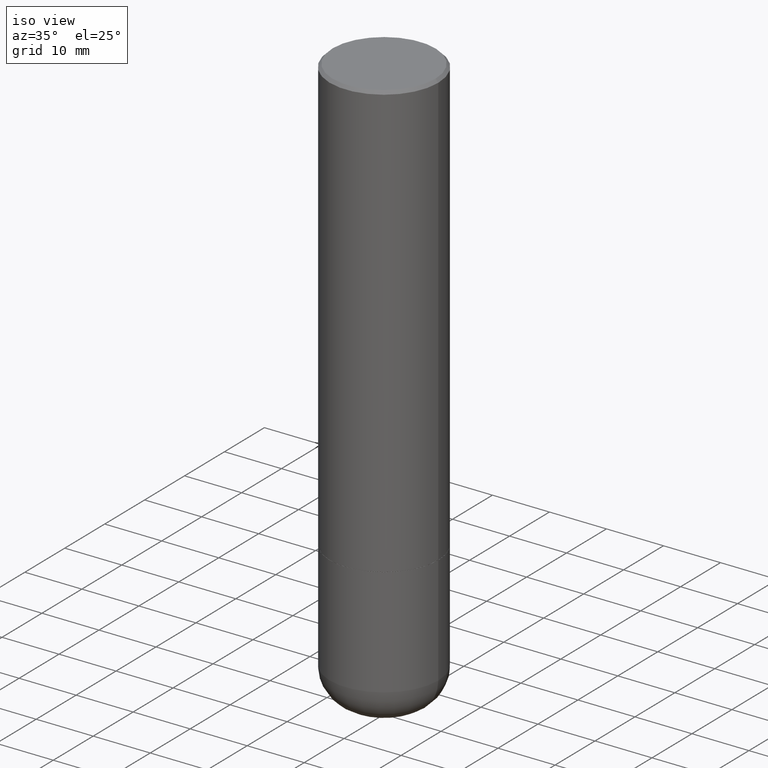
[diagram: clean part render]
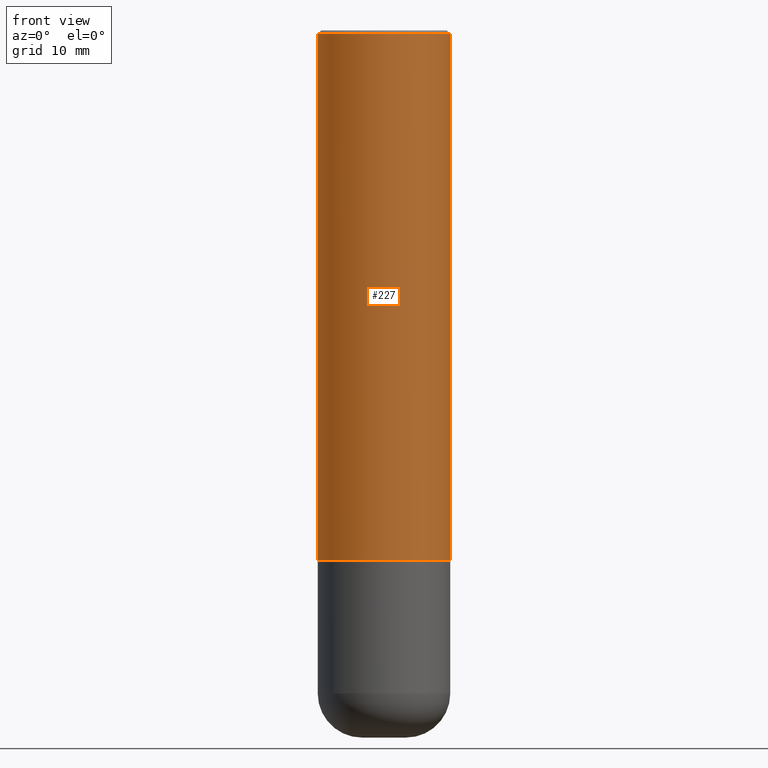
[diagram: tour spotlight — one face highlighted and labeled with its STEP entity id]
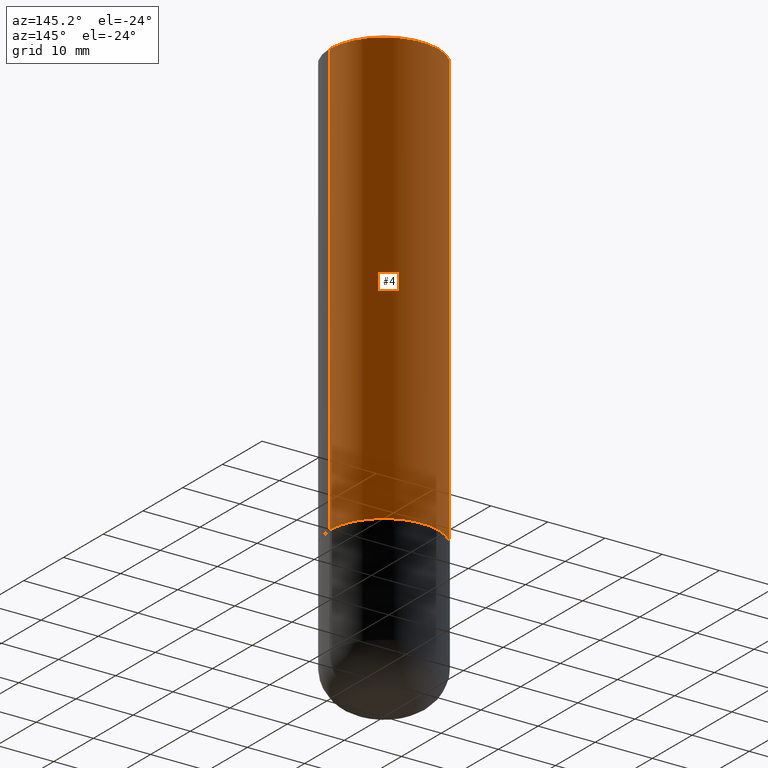
[diagram: tour spotlight — one face highlighted and labeled with its STEP entity id]
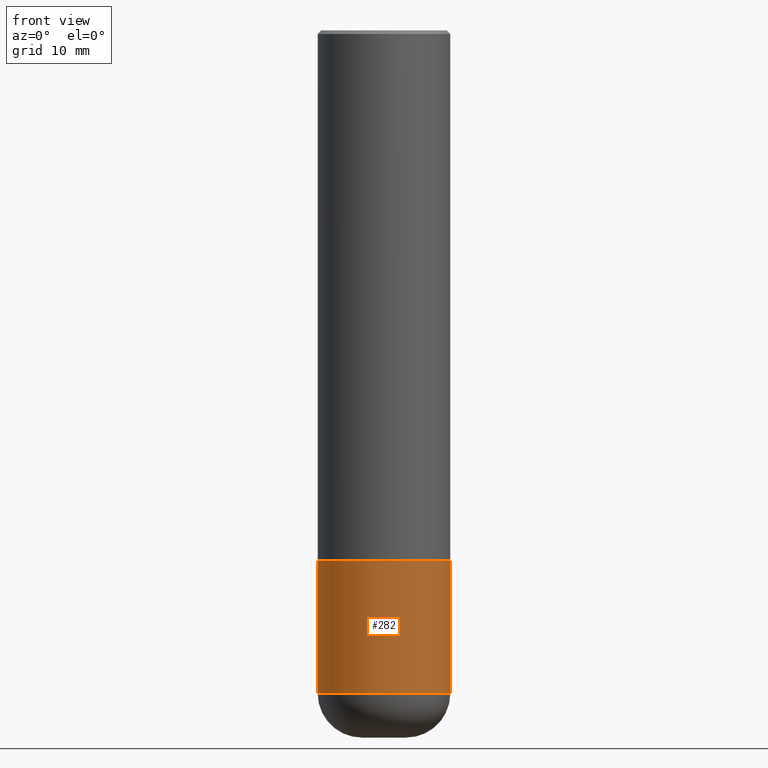
[diagram: tour spotlight — one face highlighted and labeled with its STEP entity id]
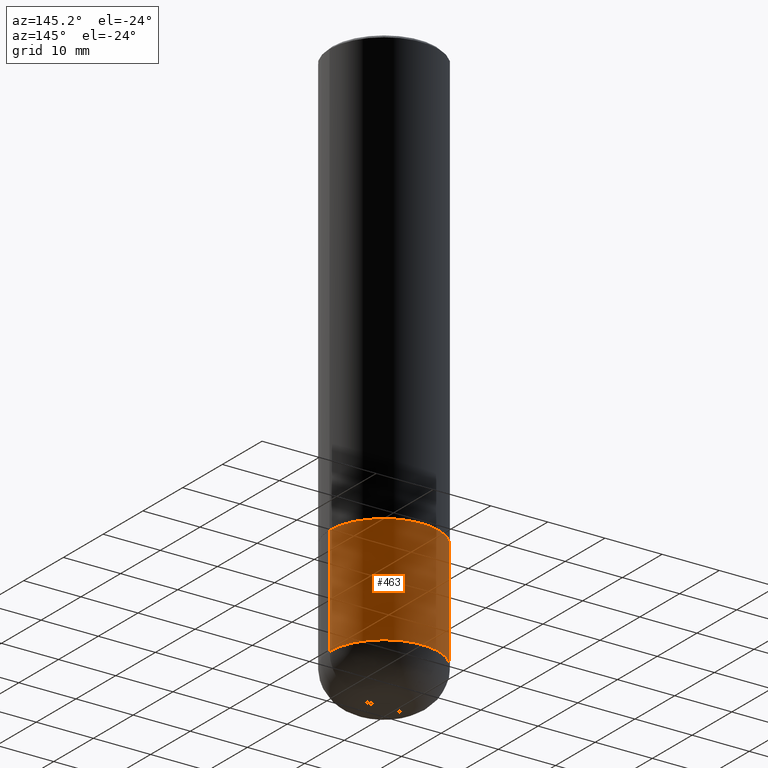
[diagram: tour spotlight — one face highlighted and labeled with its STEP entity id]
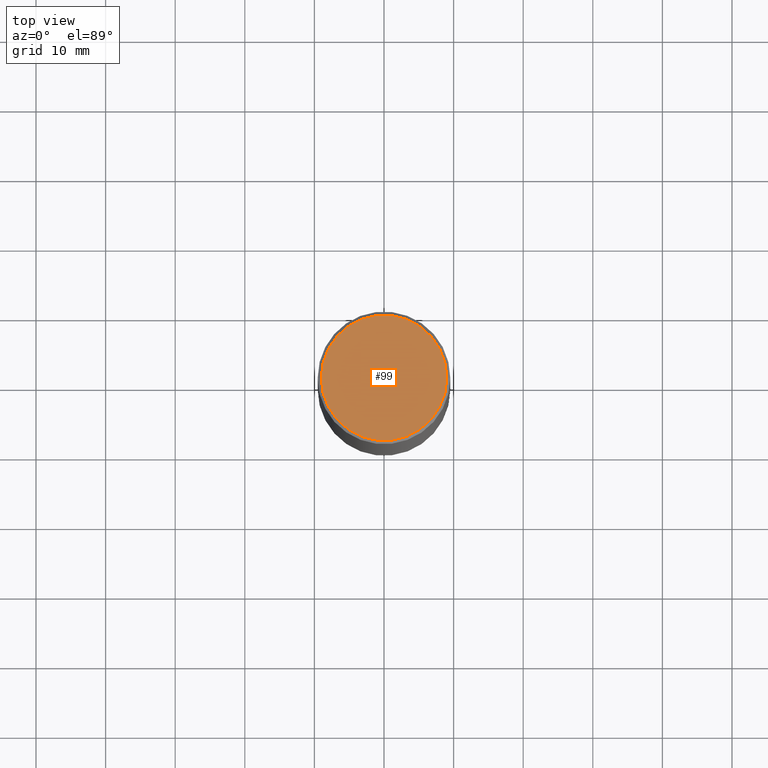
[diagram: tour spotlight — one face highlighted and labeled with its STEP entity id]
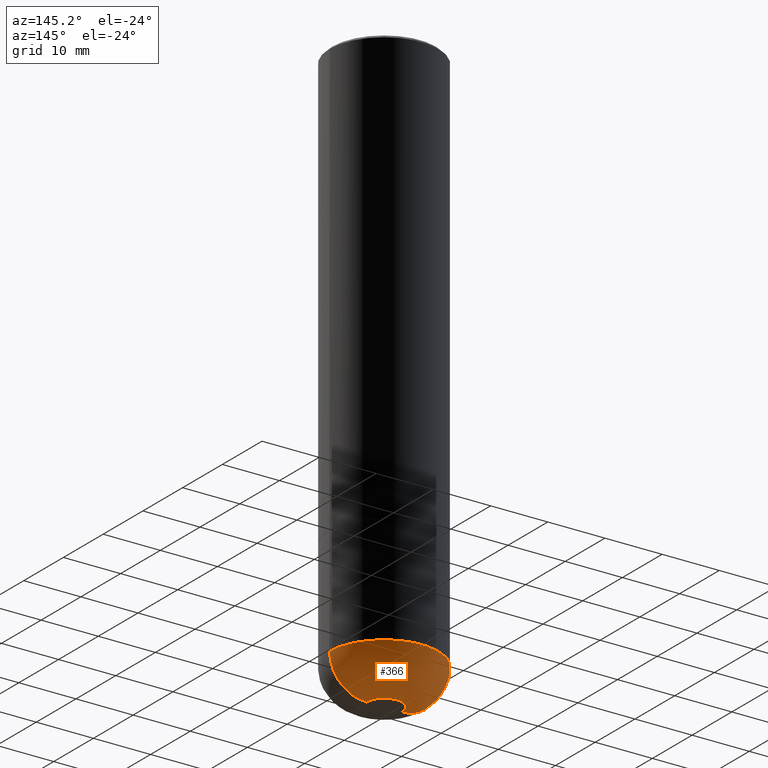
[diagram: tour spotlight — one face highlighted and labeled with its STEP entity id]
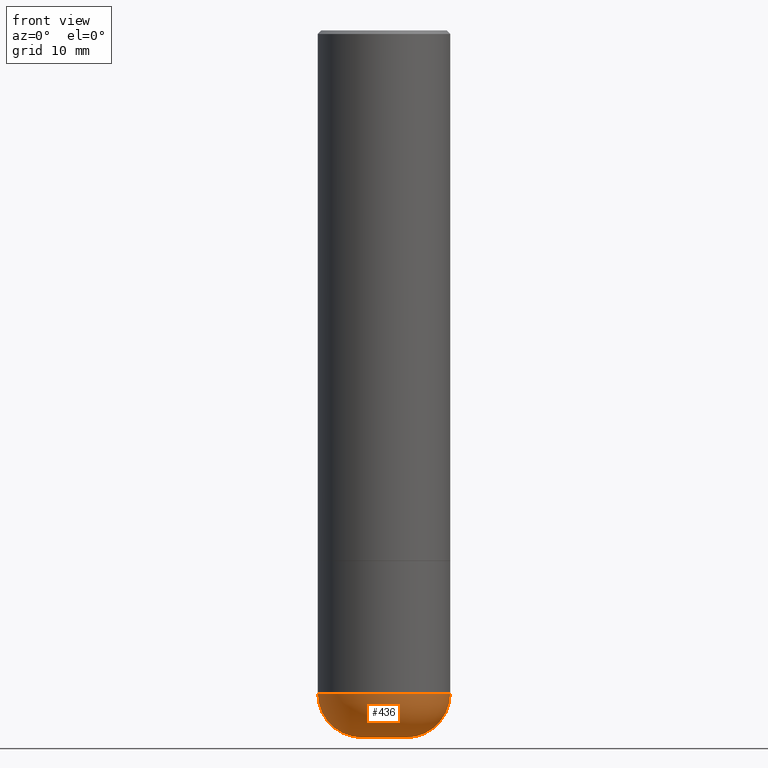
[diagram: tour spotlight — one face highlighted and labeled with its STEP entity id]
A machine part: a face-by-face anatomy tour. The part has 17 B-rep faces; the first image is the clean iso view, then the 7 largest visible faces are spotlighted one at a time (largest first), each with its STEP entity span.

Face 1 — front view, entity #227. In plain terms, the highlighted cylindrical surface (partial cylindrical patch) has radius 9.525 mm, axis along (-0, 0, 1).
Definition (entity closure, byte-faithful):
#1 = DIRECTION ( 'NONE',  ( -2.445468806185136597E-29, 3.491481338843145583E-15, 1.000000000000000000 ) ) ;
#5 = VECTOR ( 'NONE', #356, 39.37007874015748143 ) ;
#32 = EDGE_CURVE ( 'NONE', #407, #88, #280, .T. ) ;
#44 = CARTESIAN_POINT ( 'NONE',  ( 0.3749999999999992784, -2.618611004132345283E-15, 1.828566290923472279E-29 ) ) ;
#45 = CARTESIAN_POINT ( 'NONE',  ( -0.3749999999999992784, 2.664535259100370569E-15, -1.844600658845586235E-29 ) ) ;
#73 = ORIENTED_EDGE ( 'NONE', *, *, #442, .T. ) ;
#80 = VERTEX_POINT ( 'NONE', #238 ) ;
#88 = VERTEX_POINT ( 'NONE', #205 ) ;
#89 = LINE ( 'NONE', #44, #5 ) ;
#94 = EDGE_CURVE ( 'NONE', #271, #407, #472, .T. ) ;
#111 = DIRECTION ( 'NONE',  ( -2.445468806185136597E-29, 3.491481338843145583E-15, 1.000000000000000000 ) ) ;
#115 = EDGE_LOOP ( 'NONE', ( #327, #223, #73, #385 ) ) ;
#118 = CARTESIAN_POINT ( 'NONE',  ( 0.000000000000000000, 0.000000000000000000, 0.000000000000000000 ) ) ;
#130 = EDGE_CURVE ( 'NONE', #271, #80, #409, .T. ) ;
#172 = CARTESIAN_POINT ( 'NONE',  ( 7.333960949749226429E-29, -1.047095253519059492E-14, -2.999000000000000554 ) ) ;
#191 = AXIS2_PLACEMENT_3D ( 'NONE', #172, #320, #477 ) ;
#205 = CARTESIAN_POINT ( 'NONE',  ( 0.3749999999999991673, -2.642516375941182112E-15, -0.02000000000000022246 ) ) ;
#217 = CARTESIAN_POINT ( 'NONE',  ( -0.3749999999999993894, -2.605855821883354597E-15, -2.999000000000000554 ) ) ;
#223 = ORIENTED_EDGE ( 'NONE', *, *, #130, .T. ) ;
#227 = ADVANCED_FACE ( 'NONE', ( #374 ), #492, .T. ) ;
#238 = CARTESIAN_POINT ( 'NONE',  ( 0.3749999999999995004, -1.308956353932294179E-14, -2.999000000000000554 ) ) ;
#260 = AXIS2_PLACEMENT_3D ( 'NONE', #118, #111, #262 ) ;
#262 = DIRECTION ( 'NONE',  ( 1.000000000000000000, -6.982962677686267499E-15, 4.876176775795935232E-29 ) ) ;
#271 = VERTEX_POINT ( 'NONE', #217 ) ;
#280 = CIRCLE ( 'NONE', #339, 0.3749999999999991673 ) ;
#306 = DIRECTION ( 'NONE',  ( 1.000000000000000000, -6.982962677686266711E-15, 0.000000000000000000 ) ) ;
#307 = VECTOR ( 'NONE', #462, 39.37007874015748143 ) ;
#320 = DIRECTION ( 'NONE',  ( -2.445468806185136597E-29, 3.491481338843145583E-15, 1.000000000000000000 ) ) ;
#327 = ORIENTED_EDGE ( 'NONE', *, *, #94, .F. ) ;
#339 = AXIS2_PLACEMENT_3D ( 'NONE', #375, #1, #306 ) ;
#356 = DIRECTION ( 'NONE',  ( -2.445468806185136877E-29, 3.491481338843145188E-15, 1.000000000000000000 ) ) ;
#374 = FACE_OUTER_BOUND ( 'NONE', #115, .T. ) ;
#375 = CARTESIAN_POINT ( 'NONE',  ( 4.890937612370327459E-31, -6.982962677686369262E-17, -0.02000000000000022246 ) ) ;
#385 = ORIENTED_EDGE ( 'NONE', *, *, #32, .F. ) ;
#407 = VERTEX_POINT ( 'NONE', #426 ) ;
#409 = CIRCLE ( 'NONE', #191, 0.3749999999999995004 ) ;
#426 = CARTESIAN_POINT ( 'NONE',  ( -0.3749999999999991673, 2.548781377355480407E-15, -0.02000000000000022246 ) ) ;
#442 = EDGE_CURVE ( 'NONE', #80, #88, #89, .T. ) ;
#462 = DIRECTION ( 'NONE',  ( -2.445468806185136877E-29, 3.491481338843145188E-15, 1.000000000000000000 ) ) ;
#472 = LINE ( 'NONE', #45, #307 ) ;
#477 = DIRECTION ( 'NONE',  ( 1.000000000000000000, -6.982962677686266711E-15, 0.000000000000000000 ) ) ;
#492 = CYLINDRICAL_SURFACE ( 'NONE', #260, 0.3749999999999992784 ) ;

Face 2 — auxiliary view, entity #4. In plain terms, the highlighted cylindrical surface (partial cylindrical patch) has radius 9.525 mm, axis along (-0, 0, 1).
Definition (entity closure, byte-faithful):
#4 = ADVANCED_FACE ( 'NONE', ( #309 ), #453, .T. ) ;
#5 = VECTOR ( 'NONE', #356, 39.37007874015748143 ) ;
#19 = CIRCLE ( 'NONE', #324, 0.3749999999999995004 ) ;
#28 = CARTESIAN_POINT ( 'NONE',  ( 0.000000000000000000, 0.000000000000000000, 0.000000000000000000 ) ) ;
#44 = CARTESIAN_POINT ( 'NONE',  ( 0.3749999999999992784, -2.618611004132345283E-15, 1.828566290923472279E-29 ) ) ;
#45 = CARTESIAN_POINT ( 'NONE',  ( -0.3749999999999992784, 2.664535259100370569E-15, -1.844600658845586235E-29 ) ) ;
#48 = AXIS2_PLACEMENT_3D ( 'NONE', #296, #447, #113 ) ;
#61 = AXIS2_PLACEMENT_3D ( 'NONE', #28, #268, #411 ) ;
#77 = ORIENTED_EDGE ( 'NONE', *, *, #94, .T. ) ;
#80 = VERTEX_POINT ( 'NONE', #238 ) ;
#88 = VERTEX_POINT ( 'NONE', #205 ) ;
#89 = LINE ( 'NONE', #44, #5 ) ;
#94 = EDGE_CURVE ( 'NONE', #271, #407, #472, .T. ) ;
#113 = DIRECTION ( 'NONE',  ( 1.000000000000000000, -6.982962677686266711E-15, 0.000000000000000000 ) ) ;
#120 = CARTESIAN_POINT ( 'NONE',  ( 7.333960949749226429E-29, -1.047095253519059492E-14, -2.999000000000000554 ) ) ;
#126 = CIRCLE ( 'NONE', #48, 0.3749999999999991673 ) ;
#141 = ORIENTED_EDGE ( 'NONE', *, *, #146, .T. ) ;
#146 = EDGE_CURVE ( 'NONE', #80, #271, #19, .T. ) ;
#205 = CARTESIAN_POINT ( 'NONE',  ( 0.3749999999999991673, -2.642516375941182112E-15, -0.02000000000000022246 ) ) ;
#217 = CARTESIAN_POINT ( 'NONE',  ( -0.3749999999999993894, -2.605855821883354597E-15, -2.999000000000000554 ) ) ;
#238 = CARTESIAN_POINT ( 'NONE',  ( 0.3749999999999995004, -1.308956353932294179E-14, -2.999000000000000554 ) ) ;
#268 = DIRECTION ( 'NONE',  ( -2.445468806185136597E-29, 3.491481338843145583E-15, 1.000000000000000000 ) ) ;
#271 = VERTEX_POINT ( 'NONE', #217 ) ;
#296 = CARTESIAN_POINT ( 'NONE',  ( 4.890937612370327459E-31, -6.982962677686369262E-17, -0.02000000000000022246 ) ) ;
#307 = VECTOR ( 'NONE', #462, 39.37007874015748143 ) ;
#309 = FACE_OUTER_BOUND ( 'NONE', #341, .T. ) ;
#322 = EDGE_CURVE ( 'NONE', #88, #407, #126, .T. ) ;
#324 = AXIS2_PLACEMENT_3D ( 'NONE', #120, #370, #376 ) ;
#341 = EDGE_LOOP ( 'NONE', ( #141, #77, #355, #365 ) ) ;
#355 = ORIENTED_EDGE ( 'NONE', *, *, #322, .F. ) ;
#356 = DIRECTION ( 'NONE',  ( -2.445468806185136877E-29, 3.491481338843145188E-15, 1.000000000000000000 ) ) ;
#365 = ORIENTED_EDGE ( 'NONE', *, *, #442, .F. ) ;
#370 = DIRECTION ( 'NONE',  ( -2.445468806185136597E-29, 3.491481338843145583E-15, 1.000000000000000000 ) ) ;
#376 = DIRECTION ( 'NONE',  ( 1.000000000000000000, -6.982962677686266711E-15, 0.000000000000000000 ) ) ;
#407 = VERTEX_POINT ( 'NONE', #426 ) ;
#411 = DIRECTION ( 'NONE',  ( 1.000000000000000000, -6.982962677686267499E-15, 4.876176775795935232E-29 ) ) ;
#426 = CARTESIAN_POINT ( 'NONE',  ( -0.3749999999999991673, 2.548781377355480407E-15, -0.02000000000000022246 ) ) ;
#442 = EDGE_CURVE ( 'NONE', #80, #88, #89, .T. ) ;
#447 = DIRECTION ( 'NONE',  ( -2.445468806185136597E-29, 3.491481338843145583E-15, 1.000000000000000000 ) ) ;
#453 = CYLINDRICAL_SURFACE ( 'NONE', #61, 0.3749999999999992784 ) ;
#462 = DIRECTION ( 'NONE',  ( -2.445468806185136877E-29, 3.491481338843145188E-15, 1.000000000000000000 ) ) ;
#472 = LINE ( 'NONE', #45, #307 ) ;

Face 3 — front view, entity #282. In plain terms, the highlighted cylindrical surface (partial cylindrical patch) has radius 9.525 mm, axis along (-0, 0, 1).
Definition (entity closure, byte-faithful):
#3 = VECTOR ( 'NONE', #160, 39.37007874015748143 ) ;
#6 = CARTESIAN_POINT ( 'NONE',  ( -0.3749999999999995004, -9.119230877609102536E-15, -2.999999999999999556 ) ) ;
#22 = VERTEX_POINT ( 'NONE', #6 ) ;
#26 = ORIENTED_EDGE ( 'NONE', *, *, #149, .F. ) ;
#37 = EDGE_CURVE ( 'NONE', #443, #399, #380, .T. ) ;
#40 = CARTESIAN_POINT ( 'NONE',  ( 0.3749999999999997780, -2.618611004132348044E-15, 1.828566290923474801E-29 ) ) ;
#42 = CARTESIAN_POINT ( 'NONE',  ( 0.3749999999999995004, -1.309305502066178164E-14, -2.999999999999999556 ) ) ;
#66 = EDGE_CURVE ( 'NONE', #71, #443, #439, .T. ) ;
#71 = VERTEX_POINT ( 'NONE', #90 ) ;
#76 = DIRECTION ( 'NONE',  ( -2.445468806185136597E-29, 3.491481338843145583E-15, 1.000000000000000000 ) ) ;
#90 = CARTESIAN_POINT ( 'NONE',  ( -0.3750000000000000555, -9.119230877609100958E-15, -3.750009519233957089 ) ) ;
#114 = CYLINDRICAL_SURFACE ( 'NONE', #396, 0.3749999999999997780 ) ;
#149 = EDGE_CURVE ( 'NONE', #71, #22, #215, .T. ) ;
#152 = CARTESIAN_POINT ( 'NONE',  ( 0.000000000000000000, 0.000000000000000000, 0.000000000000000000 ) ) ;
#153 = ORIENTED_EDGE ( 'NONE', *, *, #264, .F. ) ;
#160 = DIRECTION ( 'NONE',  ( -2.445468806185136877E-29, 3.491481338843145188E-15, 1.000000000000000000 ) ) ;
#163 = CARTESIAN_POINT ( 'NONE',  ( 0.3750000000000000555, -1.571169926102186855E-14, -3.750009519233957089 ) ) ;
#174 = DIRECTION ( 'NONE',  ( -2.445468806185136597E-29, 3.491481338843145583E-15, 1.000000000000000000 ) ) ;
#184 = CARTESIAN_POINT ( 'NONE',  ( -0.3749999999999997780, 2.664535259100374119E-15, -1.844600658845588477E-29 ) ) ;
#187 = DIRECTION ( 'NONE',  ( -2.445468806185136597E-29, 3.491481338843145583E-15, 1.000000000000000000 ) ) ;
#213 = CIRCLE ( 'NONE', #346, 0.3749999999999995004 ) ;
#215 = LINE ( 'NONE', #184, #3 ) ;
#235 = EDGE_LOOP ( 'NONE', ( #26, #363, #304, #153 ) ) ;
#244 = DIRECTION ( 'NONE',  ( 1.000000000000000000, -6.982962677686266711E-15, 0.000000000000000000 ) ) ;
#255 = VECTOR ( 'NONE', #299, 39.37007874015748143 ) ;
#264 = EDGE_CURVE ( 'NONE', #22, #399, #213, .T. ) ;
#267 = DIRECTION ( 'NONE',  ( 1.000000000000000000, -6.982962677686265922E-15, 4.876176775795935793E-29 ) ) ;
#282 = ADVANCED_FACE ( 'NONE', ( #489 ), #114, .T. ) ;
#299 = DIRECTION ( 'NONE',  ( -2.445468806185136877E-29, 3.491481338843145188E-15, 1.000000000000000000 ) ) ;
#304 = ORIENTED_EDGE ( 'NONE', *, *, #37, .T. ) ;
#346 = AXIS2_PLACEMENT_3D ( 'NONE', #412, #187, #368 ) ;
#352 = CARTESIAN_POINT ( 'NONE',  ( 9.170531302183963183E-29, -1.309308825688951696E-14, -3.750009519233957089 ) ) ;
#363 = ORIENTED_EDGE ( 'NONE', *, *, #66, .T. ) ;
#368 = DIRECTION ( 'NONE',  ( 1.000000000000000000, -6.982962677686266711E-15, 0.000000000000000000 ) ) ;
#380 = LINE ( 'NONE', #40, #255 ) ;
#396 = AXIS2_PLACEMENT_3D ( 'NONE', #152, #76, #267 ) ;
#399 = VERTEX_POINT ( 'NONE', #42 ) ;
#401 = AXIS2_PLACEMENT_3D ( 'NONE', #352, #174, #244 ) ;
#412 = CARTESIAN_POINT ( 'NONE',  ( 7.336406418555408669E-29, -1.047444401652943478E-14, -2.999999999999999556 ) ) ;
#439 = CIRCLE ( 'NONE', #401, 0.3750000000000000555 ) ;
#443 = VERTEX_POINT ( 'NONE', #163 ) ;
#489 = FACE_OUTER_BOUND ( 'NONE', #235, .T. ) ;

Face 4 — auxiliary view, entity #463. In plain terms, the highlighted cylindrical surface (partial cylindrical patch) has radius 9.525 mm, axis along (-0, 0, 1).
Definition (entity closure, byte-faithful):
#3 = VECTOR ( 'NONE', #160, 39.37007874015748143 ) ;
#6 = CARTESIAN_POINT ( 'NONE',  ( -0.3749999999999995004, -9.119230877609102536E-15, -2.999999999999999556 ) ) ;
#18 = FACE_OUTER_BOUND ( 'NONE', #253, .T. ) ;
#22 = VERTEX_POINT ( 'NONE', #6 ) ;
#37 = EDGE_CURVE ( 'NONE', #443, #399, #380, .T. ) ;
#40 = CARTESIAN_POINT ( 'NONE',  ( 0.3749999999999997780, -2.618611004132348044E-15, 1.828566290923474801E-29 ) ) ;
#42 = CARTESIAN_POINT ( 'NONE',  ( 0.3749999999999995004, -1.309305502066178164E-14, -2.999999999999999556 ) ) ;
#56 = DIRECTION ( 'NONE',  ( 1.000000000000000000, -6.982962677686265922E-15, 4.876176775795935793E-29 ) ) ;
#71 = VERTEX_POINT ( 'NONE', #90 ) ;
#75 = CIRCLE ( 'NONE', #422, 0.3749999999999995004 ) ;
#79 = ORIENTED_EDGE ( 'NONE', *, *, #398, .F. ) ;
#90 = CARTESIAN_POINT ( 'NONE',  ( -0.3750000000000000555, -9.119230877609100958E-15, -3.750009519233957089 ) ) ;
#105 = EDGE_CURVE ( 'NONE', #443, #71, #206, .T. ) ;
#138 = CYLINDRICAL_SURFACE ( 'NONE', #331, 0.3749999999999997780 ) ;
#149 = EDGE_CURVE ( 'NONE', #71, #22, #215, .T. ) ;
#160 = DIRECTION ( 'NONE',  ( -2.445468806185136877E-29, 3.491481338843145188E-15, 1.000000000000000000 ) ) ;
#162 = ORIENTED_EDGE ( 'NONE', *, *, #37, .F. ) ;
#163 = CARTESIAN_POINT ( 'NONE',  ( 0.3750000000000000555, -1.571169926102186855E-14, -3.750009519233957089 ) ) ;
#184 = CARTESIAN_POINT ( 'NONE',  ( -0.3749999999999997780, 2.664535259100374119E-15, -1.844600658845588477E-29 ) ) ;
#206 = CIRCLE ( 'NONE', #220, 0.3750000000000000555 ) ;
#215 = LINE ( 'NONE', #184, #3 ) ;
#220 = AXIS2_PLACEMENT_3D ( 'NONE', #289, #273, #283 ) ;
#243 = CARTESIAN_POINT ( 'NONE',  ( 0.000000000000000000, 0.000000000000000000, 0.000000000000000000 ) ) ;
#253 = EDGE_LOOP ( 'NONE', ( #418, #461, #79, #162 ) ) ;
#255 = VECTOR ( 'NONE', #299, 39.37007874015748143 ) ;
#273 = DIRECTION ( 'NONE',  ( -2.445468806185136597E-29, 3.491481338843145583E-15, 1.000000000000000000 ) ) ;
#281 = CARTESIAN_POINT ( 'NONE',  ( 7.336406418555408669E-29, -1.047444401652943478E-14, -2.999999999999999556 ) ) ;
#283 = DIRECTION ( 'NONE',  ( 1.000000000000000000, -6.982962677686266711E-15, 0.000000000000000000 ) ) ;
#286 = DIRECTION ( 'NONE',  ( -2.445468806185136597E-29, 3.491481338843145583E-15, 1.000000000000000000 ) ) ;
#289 = CARTESIAN_POINT ( 'NONE',  ( 9.170531302183963183E-29, -1.309308825688951696E-14, -3.750009519233957089 ) ) ;
#299 = DIRECTION ( 'NONE',  ( -2.445468806185136877E-29, 3.491481338843145188E-15, 1.000000000000000000 ) ) ;
#331 = AXIS2_PLACEMENT_3D ( 'NONE', #243, #395, #56 ) ;
#380 = LINE ( 'NONE', #40, #255 ) ;
#395 = DIRECTION ( 'NONE',  ( -2.445468806185136597E-29, 3.491481338843145583E-15, 1.000000000000000000 ) ) ;
#398 = EDGE_CURVE ( 'NONE', #399, #22, #75, .T. ) ;
#399 = VERTEX_POINT ( 'NONE', #42 ) ;
#418 = ORIENTED_EDGE ( 'NONE', *, *, #105, .T. ) ;
#422 = AXIS2_PLACEMENT_3D ( 'NONE', #281, #286, #465 ) ;
#443 = VERTEX_POINT ( 'NONE', #163 ) ;
#461 = ORIENTED_EDGE ( 'NONE', *, *, #149, .T. ) ;
#463 = ADVANCED_FACE ( 'NONE', ( #18 ), #138, .T. ) ;
#465 = DIRECTION ( 'NONE',  ( 1.000000000000000000, -6.982962677686266711E-15, 0.000000000000000000 ) ) ;

Face 5 — top view, entity #99. In plain terms, the highlighted planar face has unit normal (0, -0, -1).
Definition (entity closure, byte-faithful):
#9 = DIRECTION ( 'NONE',  ( -1.000000000000000000, 6.982962677686265922E-15, -4.876176775795935793E-29 ) ) ;
#12 = CIRCLE ( 'NONE', #297, 0.3549999999999989275 ) ;
#78 = DIRECTION ( 'NONE',  ( -2.445468806185136597E-29, 3.491481338843145583E-15, 1.000000000000000000 ) ) ;
#99 = ADVANCED_FACE ( 'NONE', ( #122 ), #391, .F. ) ;
#112 = EDGE_CURVE ( 'NONE', #329, #292, #381, .T. ) ;
#122 = FACE_OUTER_BOUND ( 'NONE', #332, .T. ) ;
#135 = DIRECTION ( 'NONE',  ( 2.438088387897960049E-29, -3.491481338843145188E-15, -1.000000000000000000 ) ) ;
#195 = EDGE_CURVE ( 'NONE', #292, #329, #12, .T. ) ;
#196 = DIRECTION ( 'NONE',  ( 1.000000000000000000, -6.982962677686266711E-15, 4.876231632512002757E-29 ) ) ;
#201 = CARTESIAN_POINT ( 'NONE',  ( -1.043851414335219820E-46, 1.490343170380447200E-32, 4.268512490100411279E-18 ) ) ;
#218 = CARTESIAN_POINT ( 'NONE',  ( -1.043851414335219820E-46, 1.490343170380447200E-32, 4.268512490100411279E-18 ) ) ;
#225 = CARTESIAN_POINT ( 'NONE',  ( -0.3549999999999989275, 2.513866563967048758E-15, 4.268512490082953109E-18 ) ) ;
#239 = ORIENTED_EDGE ( 'NONE', *, *, #195, .T. ) ;
#292 = VERTEX_POINT ( 'NONE', #225 ) ;
#297 = AXIS2_PLACEMENT_3D ( 'NONE', #218, #78, #308 ) ;
#308 = DIRECTION ( 'NONE',  ( 1.000000000000000000, -6.982962677686266711E-15, 4.876231632512002757E-29 ) ) ;
#323 = CARTESIAN_POINT ( 'NONE',  ( 2.478951750578617109E-15, 0.3549999999999989275, -1.237341619044262680E-15 ) ) ;
#329 = VERTEX_POINT ( 'NONE', #473 ) ;
#332 = EDGE_LOOP ( 'NONE', ( #239, #468 ) ) ;
#357 = DIRECTION ( 'NONE',  ( -2.445468806185136597E-29, 3.491481338843145583E-15, 1.000000000000000000 ) ) ;
#367 = AXIS2_PLACEMENT_3D ( 'NONE', #323, #135, #9 ) ;
#381 = CIRCLE ( 'NONE', #446, 0.3549999999999989275 ) ;
#391 = PLANE ( 'NONE',  #367 ) ;
#446 = AXIS2_PLACEMENT_3D ( 'NONE', #201, #357, #196 ) ;
#468 = ORIENTED_EDGE ( 'NONE', *, *, #112, .T. ) ;
#473 = CARTESIAN_POINT ( 'NONE',  ( 0.3549999999999989275, -2.538996582575033948E-15, 4.268512490117958041E-18 ) ) ;

Face 6 — auxiliary view, entity #366. In plain terms, the highlighted toroidal blend (fillet) surface has major radius 3.175 mm and minor (blend) radius 6.35 mm.
Definition (entity closure, byte-faithful):
#11 = DIRECTION ( 'NONE',  ( -2.445468806185136597E-29, 3.491481338843145583E-15, 1.000000000000000000 ) ) ;
#13 = DIRECTION ( 'NONE',  ( 7.105427357601001859E-15, 1.000000000000000000, -3.491481338843145583E-15 ) ) ;
#14 = AXIS2_PLACEMENT_3D ( 'NONE', #204, #175, #325 ) ;
#23 = AXIS2_PLACEMENT_3D ( 'NONE', #284, #13, #233 ) ;
#29 = TOROIDAL_SURFACE ( 'NONE', #361, 0.1250000000000002498, 0.2499999999999998890 ) ;
#51 = EDGE_CURVE ( 'NONE', #139, #71, #431, .T. ) ;
#54 = FACE_OUTER_BOUND ( 'NONE', #429, .T. ) ;
#58 = CIRCLE ( 'NONE', #67, 0.1228183661254081405 ) ;
#60 = CIRCLE ( 'NONE', #14, 0.2499999999999998612 ) ;
#67 = AXIS2_PLACEMENT_3D ( 'NONE', #72, #406, #455 ) ;
#71 = VERTEX_POINT ( 'NONE', #90 ) ;
#72 = CARTESIAN_POINT ( 'NONE',  ( 9.781875224740546387E-29, -1.396592535537258233E-14, -4.000000000000000000 ) ) ;
#90 = CARTESIAN_POINT ( 'NONE',  ( -0.3750000000000000555, -9.119230877609100958E-15, -3.750009519233957089 ) ) ;
#105 = EDGE_CURVE ( 'NONE', #443, #71, #206, .T. ) ;
#131 = DIRECTION ( 'NONE',  ( 1.000000000000000000, -6.982962677686265922E-15, 4.883557194083113462E-29 ) ) ;
#139 = VERTEX_POINT ( 'NONE', #177 ) ;
#150 = ORIENTED_EDGE ( 'NONE', *, *, #159, .T. ) ;
#159 = EDGE_CURVE ( 'NONE', #290, #139, #58, .T. ) ;
#163 = CARTESIAN_POINT ( 'NONE',  ( 0.3750000000000000555, -1.571169926102186855E-14, -3.750009519233957089 ) ) ;
#175 = DIRECTION ( 'NONE',  ( -6.982962677686266711E-15, -1.000000000000000000, 3.491481338843145583E-15 ) ) ;
#177 = CARTESIAN_POINT ( 'NONE',  ( -0.1228183661254081405, -1.176090068723919562E-14, -4.000000000000000000 ) ) ;
#194 = ORIENTED_EDGE ( 'NONE', *, *, #105, .F. ) ;
#202 = CARTESIAN_POINT ( 'NONE',  ( 9.170531302183963183E-29, -1.309308825688951696E-14, -3.750009519233957089 ) ) ;
#204 = CARTESIAN_POINT ( 'NONE',  ( 0.1250000000000002498, -1.396595859160030187E-14, -3.750009519233957089 ) ) ;
#206 = CIRCLE ( 'NONE', #220, 0.3750000000000000555 ) ;
#211 = ORIENTED_EDGE ( 'NONE', *, *, #491, .F. ) ;
#220 = AXIS2_PLACEMENT_3D ( 'NONE', #289, #273, #283 ) ;
#233 = DIRECTION ( 'NONE',  ( -1.000000000000000000, 7.105427357601000281E-15, 0.000000000000000000 ) ) ;
#258 = CARTESIAN_POINT ( 'NONE',  ( 0.1228183661254081405, -1.482356142216071483E-14, -4.000000000000000000 ) ) ;
#273 = DIRECTION ( 'NONE',  ( -2.445468806185136597E-29, 3.491481338843145583E-15, 1.000000000000000000 ) ) ;
#283 = DIRECTION ( 'NONE',  ( 1.000000000000000000, -6.982962677686266711E-15, 0.000000000000000000 ) ) ;
#284 = CARTESIAN_POINT ( 'NONE',  ( -0.1250000000000002498, -1.220490983718939015E-14, -3.750009519233957089 ) ) ;
#289 = CARTESIAN_POINT ( 'NONE',  ( 9.170531302183963183E-29, -1.309308825688951696E-14, -3.750009519233957089 ) ) ;
#290 = VERTEX_POINT ( 'NONE', #258 ) ;
#325 = DIRECTION ( 'NONE',  ( 1.000000000000000000, -6.982962677686266711E-15, 0.000000000000000000 ) ) ;
#334 = ORIENTED_EDGE ( 'NONE', *, *, #51, .T. ) ;
#361 = AXIS2_PLACEMENT_3D ( 'NONE', #202, #11, #131 ) ;
#366 = ADVANCED_FACE ( 'NONE', ( #54 ), #29, .T. ) ;
#406 = DIRECTION ( 'NONE',  ( -2.445468806185136597E-29, 3.491481338843145583E-15, 1.000000000000000000 ) ) ;
#429 = EDGE_LOOP ( 'NONE', ( #150, #334, #194, #211 ) ) ;
#431 = CIRCLE ( 'NONE', #23, 0.2499999999999998612 ) ;
#443 = VERTEX_POINT ( 'NONE', #163 ) ;
#455 = DIRECTION ( 'NONE',  ( 1.000000000000000000, -6.982962677686264344E-15, 0.000000000000000000 ) ) ;
#491 = EDGE_CURVE ( 'NONE', #290, #443, #60, .T. ) ;

Face 7 — front view, entity #436. In plain terms, the highlighted toroidal blend (fillet) surface has major radius 3.175 mm and minor (blend) radius 6.35 mm.
Definition (entity closure, byte-faithful):
#13 = DIRECTION ( 'NONE',  ( 7.105427357601001859E-15, 1.000000000000000000, -3.491481338843145583E-15 ) ) ;
#14 = AXIS2_PLACEMENT_3D ( 'NONE', #204, #175, #325 ) ;
#23 = AXIS2_PLACEMENT_3D ( 'NONE', #284, #13, #233 ) ;
#51 = EDGE_CURVE ( 'NONE', #139, #71, #431, .T. ) ;
#53 = ORIENTED_EDGE ( 'NONE', *, *, #66, .F. ) ;
#60 = CIRCLE ( 'NONE', #14, 0.2499999999999998612 ) ;
#66 = EDGE_CURVE ( 'NONE', #71, #443, #439, .T. ) ;
#71 = VERTEX_POINT ( 'NONE', #90 ) ;
#90 = CARTESIAN_POINT ( 'NONE',  ( -0.3750000000000000555, -9.119230877609100958E-15, -3.750009519233957089 ) ) ;
#92 = DIRECTION ( 'NONE',  ( -2.445468806185136597E-29, 3.491481338843145583E-15, 1.000000000000000000 ) ) ;
#98 = AXIS2_PLACEMENT_3D ( 'NONE', #419, #92, #132 ) ;
#132 = DIRECTION ( 'NONE',  ( 1.000000000000000000, -6.982962677686265922E-15, 4.883557194083113462E-29 ) ) ;
#136 = CIRCLE ( 'NONE', #481, 0.1228183661254081405 ) ;
#139 = VERTEX_POINT ( 'NONE', #177 ) ;
#151 = TOROIDAL_SURFACE ( 'NONE', #98, 0.1250000000000002498, 0.2499999999999998890 ) ;
#163 = CARTESIAN_POINT ( 'NONE',  ( 0.3750000000000000555, -1.571169926102186855E-14, -3.750009519233957089 ) ) ;
#174 = DIRECTION ( 'NONE',  ( -2.445468806185136597E-29, 3.491481338843145583E-15, 1.000000000000000000 ) ) ;
#175 = DIRECTION ( 'NONE',  ( -6.982962677686266711E-15, -1.000000000000000000, 3.491481338843145583E-15 ) ) ;
#177 = CARTESIAN_POINT ( 'NONE',  ( -0.1228183661254081405, -1.176090068723919562E-14, -4.000000000000000000 ) ) ;
#204 = CARTESIAN_POINT ( 'NONE',  ( 0.1250000000000002498, -1.396595859160030187E-14, -3.750009519233957089 ) ) ;
#233 = DIRECTION ( 'NONE',  ( -1.000000000000000000, 7.105427357601000281E-15, 0.000000000000000000 ) ) ;
#244 = DIRECTION ( 'NONE',  ( 1.000000000000000000, -6.982962677686266711E-15, 0.000000000000000000 ) ) ;
#249 = EDGE_LOOP ( 'NONE', ( #405, #438, #291, #53 ) ) ;
#258 = CARTESIAN_POINT ( 'NONE',  ( 0.1228183661254081405, -1.482356142216071483E-14, -4.000000000000000000 ) ) ;
#279 = DIRECTION ( 'NONE',  ( 1.000000000000000000, -6.982962677686264344E-15, 0.000000000000000000 ) ) ;
#284 = CARTESIAN_POINT ( 'NONE',  ( -0.1250000000000002498, -1.220490983718939015E-14, -3.750009519233957089 ) ) ;
#290 = VERTEX_POINT ( 'NONE', #258 ) ;
#291 = ORIENTED_EDGE ( 'NONE', *, *, #491, .T. ) ;
#312 = DIRECTION ( 'NONE',  ( -2.445468806185136597E-29, 3.491481338843145583E-15, 1.000000000000000000 ) ) ;
#325 = DIRECTION ( 'NONE',  ( 1.000000000000000000, -6.982962677686266711E-15, 0.000000000000000000 ) ) ;
#352 = CARTESIAN_POINT ( 'NONE',  ( 9.170531302183963183E-29, -1.309308825688951696E-14, -3.750009519233957089 ) ) ;
#358 = CARTESIAN_POINT ( 'NONE',  ( 9.781875224740546387E-29, -1.396592535537258233E-14, -4.000000000000000000 ) ) ;
#401 = AXIS2_PLACEMENT_3D ( 'NONE', #352, #174, #244 ) ;
#405 = ORIENTED_EDGE ( 'NONE', *, *, #51, .F. ) ;
#419 = CARTESIAN_POINT ( 'NONE',  ( 9.170531302183963183E-29, -1.309308825688951696E-14, -3.750009519233957089 ) ) ;
#430 = FACE_OUTER_BOUND ( 'NONE', #249, .T. ) ;
#431 = CIRCLE ( 'NONE', #23, 0.2499999999999998612 ) ;
#436 = ADVANCED_FACE ( 'NONE', ( #430 ), #151, .T. ) ;
#438 = ORIENTED_EDGE ( 'NONE', *, *, #441, .T. ) ;
#439 = CIRCLE ( 'NONE', #401, 0.3750000000000000555 ) ;
#441 = EDGE_CURVE ( 'NONE', #139, #290, #136, .T. ) ;
#443 = VERTEX_POINT ( 'NONE', #163 ) ;
#481 = AXIS2_PLACEMENT_3D ( 'NONE', #358, #312, #279 ) ;
#491 = EDGE_CURVE ( 'NONE', #290, #443, #60, .T. ) ;